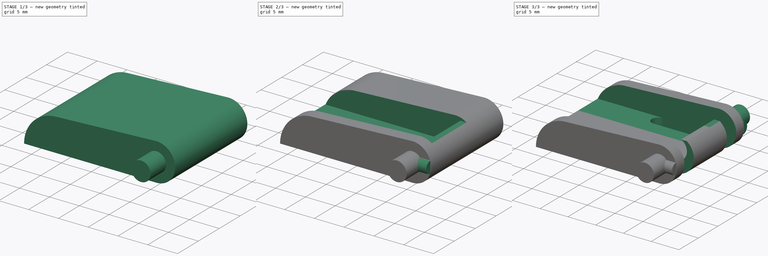
[diagram: build sequence overview — one tinted view per stage of 3, left to right]
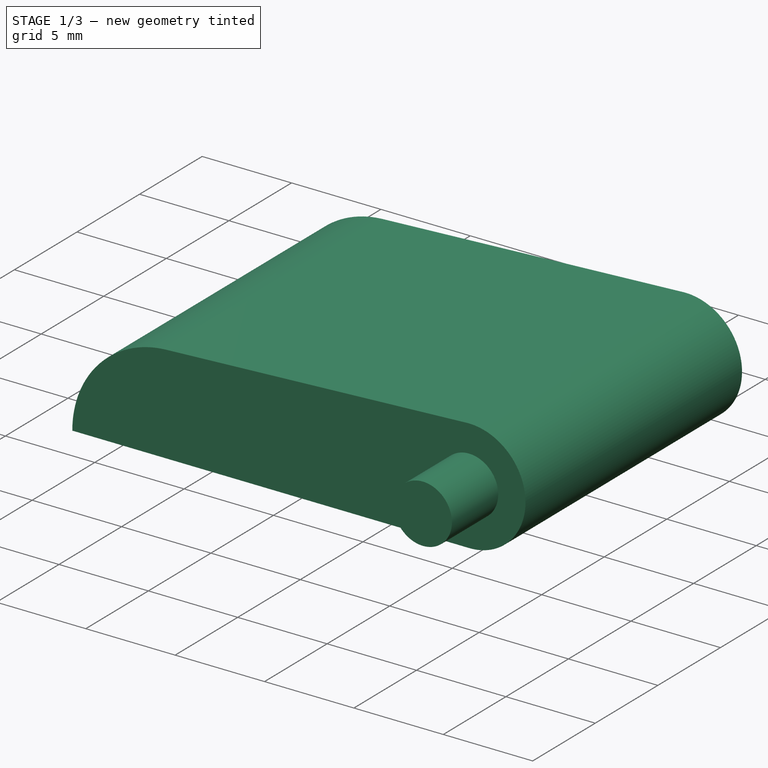
[diagram: stage 1 of 3 — iso view after this stage's code; geometry added in this stage tinted green]
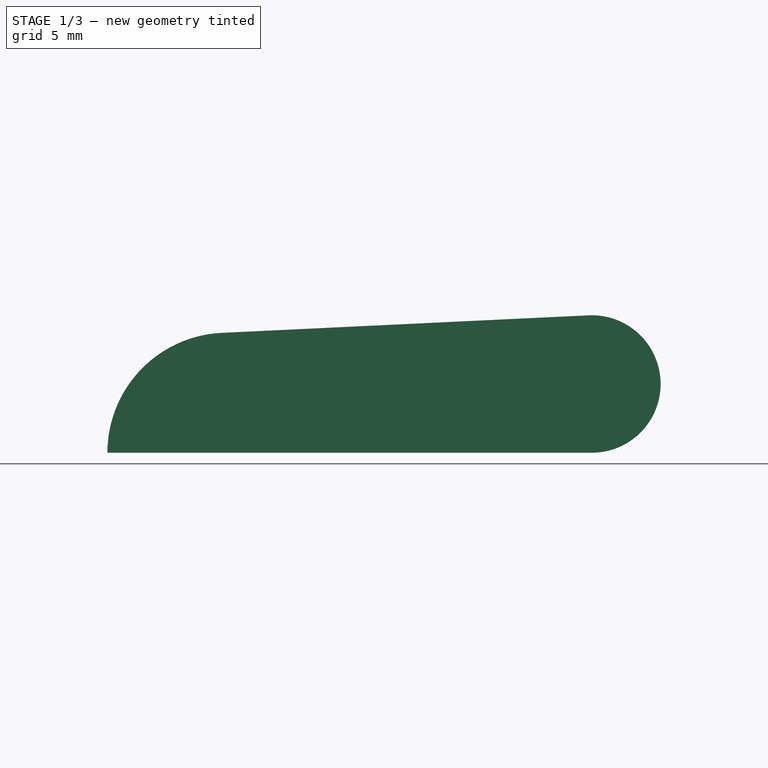
[diagram: stage 1 of 3 — front view after this stage's code; geometry added in this stage tinted green]
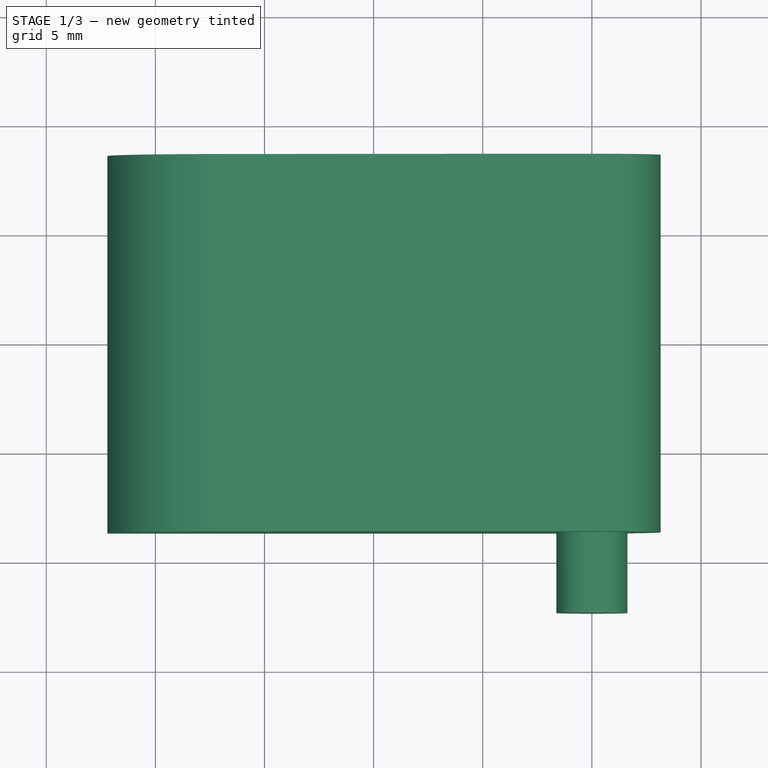
[diagram: stage 1 of 3 — top view after this stage's code; geometry added in this stage tinted green]
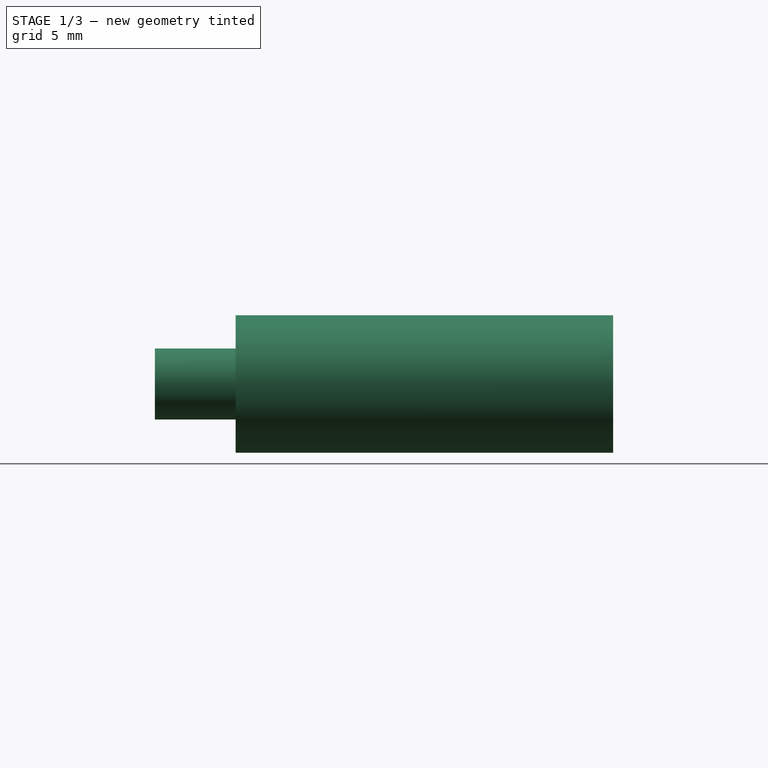
[diagram: stage 1 of 3 — right view after this stage's code; geometry added in this stage tinted green]
FCSTD DOCUMENT  (FreeCAD 0.21R33771 (Git))
Label: pied_clavier
License: All rights reserved
LicenseURL: https://en.wikipedia.org/wiki/All_rights_reserved
objects: Sketcher::SketchObject×5, PartDesign::Pad×3, PartDesign::Pocket×2, PartDesign::Mirrored×1, PartDesign::Body×1
note: 17 computed .brp shape members not serialized (recipe doc carries the construction recipe); baked Part::Feature solids carry a one-line shape summary decoded from their .brp

FEATURE [Sketcher::SketchObject] Sketch
  FullyConstrained = true
  MapMode = 5
  Placement = pos=(0,0,0) rot=(1,0,0;1.5708rad)
  Support = -> [XZ_Plane]
  sketch-geometry (4):
    g0: ArcOfCircle CenterX=0 CenterY=0 CenterZ=0 NormalX=0 NormalY=0 NormalZ=1 AngleXU=0 Radius=3.15 StartAngle=4.71239 EndAngle=7.90169
    g1: LineSegment StartX=-6e-16 StartY=-3.15 StartZ=0 EndX=-22.2 EndY=-3.15 EndZ=0
    g2: ArcOfCircle CenterX=-16.7 CenterY=-3.15 CenterZ=0 NormalX=0 NormalY=0 NormalZ=1 AngleXU=0 Radius=5.5 StartAngle=1.6185 EndAngle=3.14159
    g3: LineSegment StartX=-16.9623 StartY=2.34374 StartZ=0 EndX=-0.150222 EndY=3.14642 EndZ=0
  constraints (11):
    c: Coincident(g0,g-1)
    c: PointOnObject(g0,g-2)
    c: Coincident(g1,g0)
    c: Horizontal(g1)
    c: PointOnObject(g2,g1)
    c: Coincident(g2,g1)
    c: Tangent(g3,g2) = 1.5708
    c: Tangent(g3,g0) = 1.5708
    c: Diameter(g0) = 6.3
    c: Diameter(g2) = 11
    c: DistanceX(g1,g0) = 22.2
FEATURE [PartDesign::Pad] Pad
  Direction = (0,-1,2e-16)
  Length = 17.3
  Length2 = 10
  Midplane = true
  Placement = pos=(0,0,0) rot=(1,0,0;1.5708rad)
  Profile = -> Sketch
  ReferenceAxis = -> Sketch [N_Axis]
  Type = 0
FEATURE [Sketcher::SketchObject] Sketch001
  FullyConstrained = true
  MapMode = 5
  Placement = pos=(0,-8.65,1.9e-15) rot=(1,0,0;1.5708rad)
  Support = -> [Pad]
  sketch-geometry (1):
    g0: Circle CenterX=0 CenterY=0 CenterZ=0 NormalX=0 NormalY=0 NormalZ=1 AngleXU=0 Radius=1.625
  constraints (2):
    c: Coincident(g0,g-1)
    c: Diameter(g0) = 3.25
FEATURE [PartDesign::Pad] Pad001
  BaseFeature = -> Pad
  Direction = (0,-1,2e-16)
  Length = 3.7
  Length2 = 10
  Placement = pos=(0,0,0) rot=(1,0,0;1.5708rad)
  Profile = -> Sketch001
  ReferenceAxis = -> Sketch001 [N_Axis]
  Type = 0
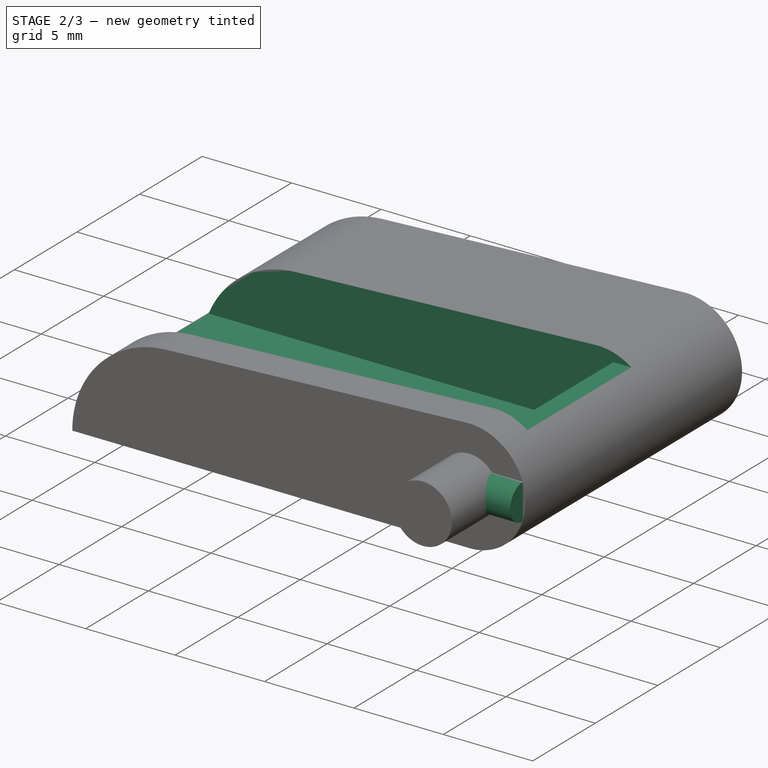
[diagram: stage 2 of 3 — iso view after this stage's code; geometry added in this stage tinted green]
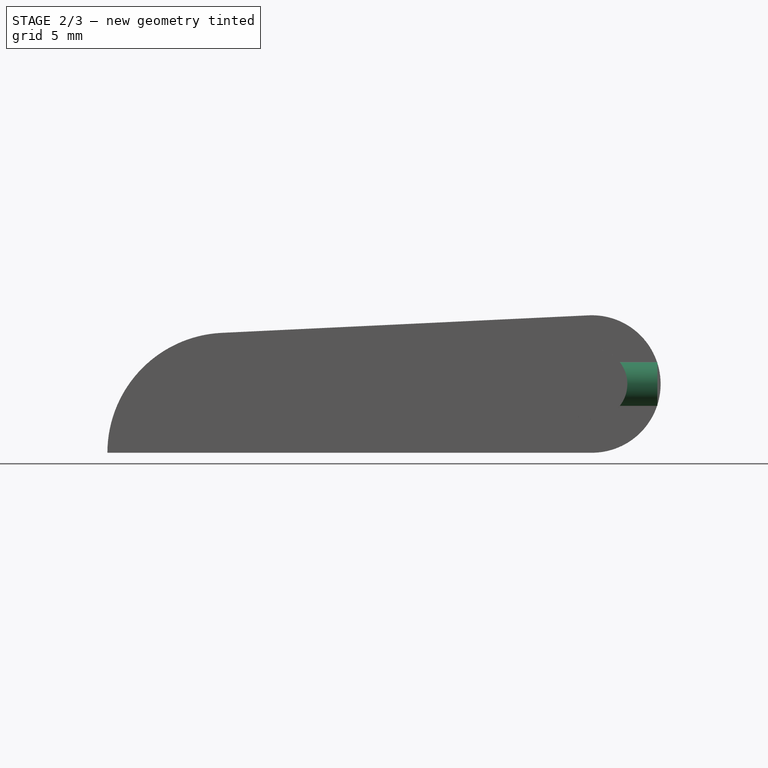
[diagram: stage 2 of 3 — front view after this stage's code; geometry added in this stage tinted green]
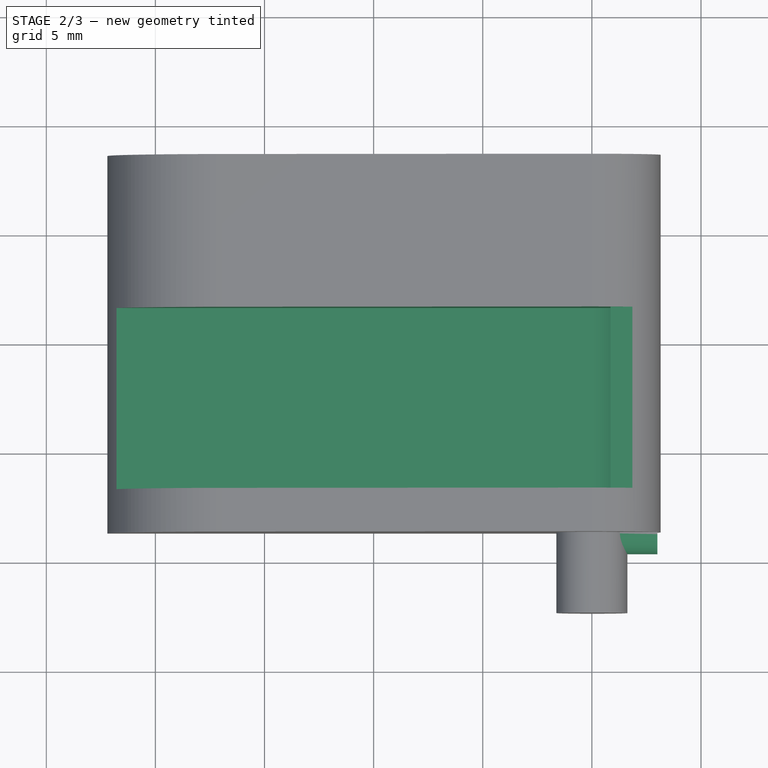
[diagram: stage 2 of 3 — top view after this stage's code; geometry added in this stage tinted green]
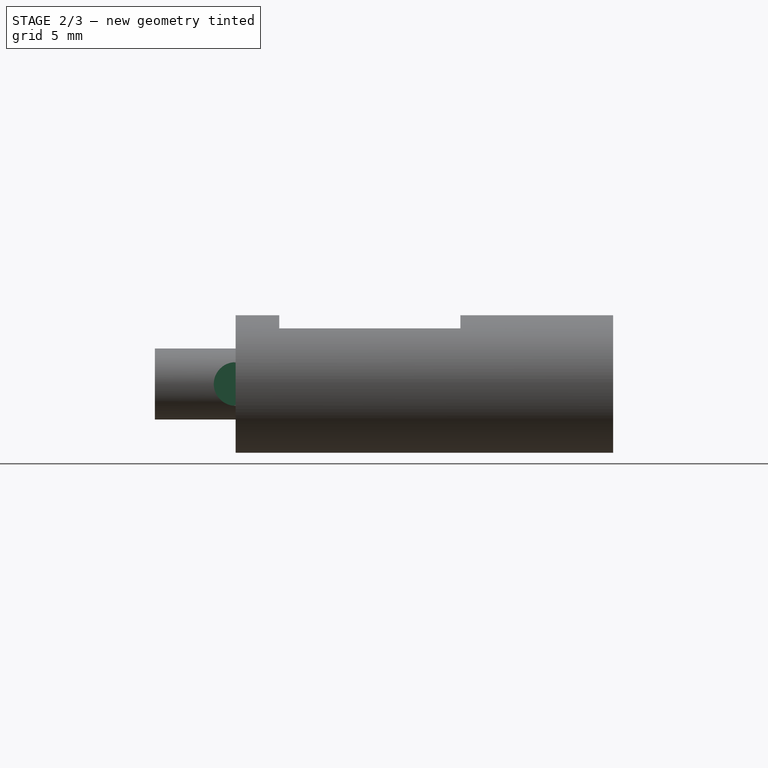
[diagram: stage 2 of 3 — right view after this stage's code; geometry added in this stage tinted green]
FEATURE [Sketcher::SketchObject] Sketch002
  ExternalGeometry = -> [Pad001]
  FullyConstrained = true
  MapMode = 5
  Placement = pos=(0,0,0) rot=(0.57735,0.57735,0.57735;2.0944rad)
  Support = -> [YZ_Plane]
  sketch-geometry (2):
    g0: ArcOfCircle CenterX=-8.65 CenterY=-9e-16 CenterZ=0 NormalX=0 NormalY=0 NormalZ=1 AngleXU=0 Radius=1 StartAngle=1.5708 EndAngle=4.71239
    g1: LineSegment StartX=-8.65 StartY=-1 StartZ=0 EndX=-8.65 EndY=1 EndZ=0
  constraints (6):
    c: Coincident(g0,g-3)
    c: Vertical(g0,g0)
    c: Vertical(g0,g0)
    c: Diameter(g0) = 2
    c: Coincident(g1,g0)
    c: Coincident(g1,g0)
FEATURE [PartDesign::Pad] Pad002
  BaseFeature = -> Pad001
  Direction = (1,-2e-16,3e-16)
  Length = 3
  Length2 = 10
  Placement = pos=(0,0,0) rot=(1,0,0;1.5708rad)
  Profile = -> Sketch002
  ReferenceAxis = -> Sketch002 [N_Axis]
  Type = 0
FEATURE [Sketcher::SketchObject] Sketch003
  ExternalGeometry = -> [Pad002]
  FullyConstrained = true
  MapMode = 5
  Placement = pos=(0,-8.65,1.9e-15) rot=(1,0,0;1.5708rad)
  Support = -> [Pad002]
  sketch-geometry (6):
    g0: LineSegment StartX=-21.7833 StartY=-1.05 StartZ=0 EndX=0 EndY=-1.05 EndZ=0
    g1: ArcOfCircle CenterX=0 CenterY=0.849664 CenterZ=0 NormalX=0 NormalY=0 NormalZ=1 AngleXU=0 Radius=1.89966 StartAngle=4.71239 EndAngle=7.38757
    g2: LineSegment StartX=1.85426 StartY=2.54642 StartZ=0 EndX=0.854256 EndY=2.54642 EndZ=0
    g3: LineSegment StartX=-16.9623 StartY=2.34374 StartZ=0 EndX=-0.150222 EndY=3.14642 EndZ=0
    g4: ArcOfCircle CenterX=0 CenterY=0 CenterZ=0 NormalX=0 NormalY=0 NormalZ=1 AngleXU=0 Radius=3.15 StartAngle=0.941405 EndAngle=1.6185
    g5: ArcOfCircle CenterX=-16.7 CenterY=-3.15 CenterZ=0 NormalX=0 NormalY=0 NormalZ=1 AngleXU=0 Radius=5.5 StartAngle=1.6185 EndAngle=2.74983
  constraints (17):
    c: PointOnObject(g0,g-2)
    c: Horizontal(g0)
    c: DistanceY(g-6,g0) = 2.1
    c: PointOnObject(g1,g-2)
    c: Coincident(g1,g0)
    c: Coincident(g2,g1)
    c: Horizontal(g2)
    c: DistanceY(g1,g-7) = 0.6
    c: Distance(g2) = 1
    c: Coincident(g3,g-6)
    c: Coincident(g3,g-7)
    c: Coincident(g4,g-7)
    c: Coincident(g4,g3)
    c: Coincident(g4,g2)
    c: Coincident(g5,g-6)
    c: Coincident(g5,g3)
    c: Coincident(g5,g0)
FEATURE [PartDesign::Pocket] Pocket
  BaseFeature = -> Pad002
  Direction = (0,1,-2e-16)
  Length = 10.3
  Length2 = -2
  Placement = pos=(0,0,0) rot=(1,0,0;1.5708rad)
  Profile = -> Sketch003
  ReferenceAxis = -> Sketch003 [N_Axis]
  Type = 4
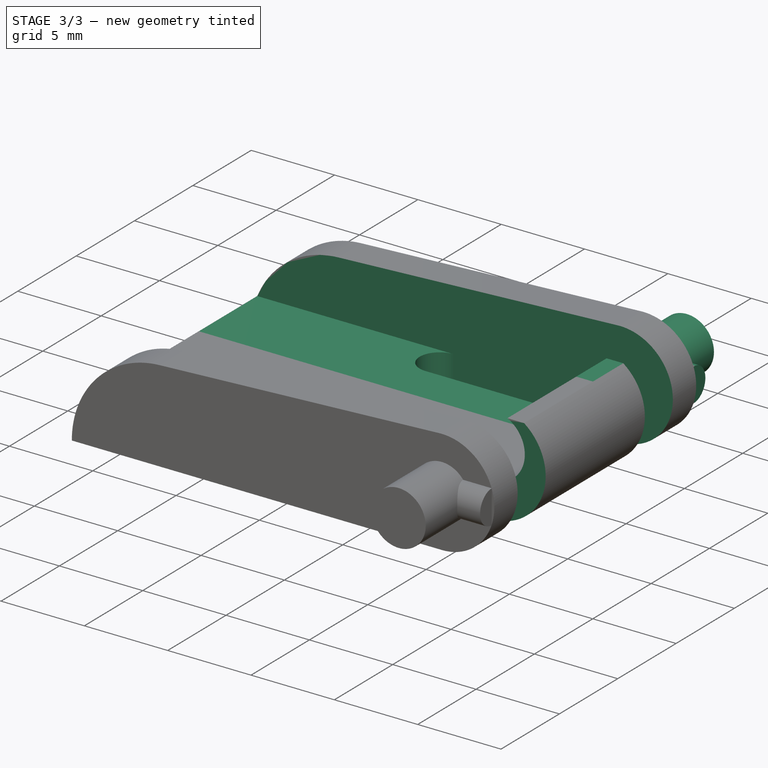
[diagram: stage 3 of 3 — iso view after this stage's code; geometry added in this stage tinted green]
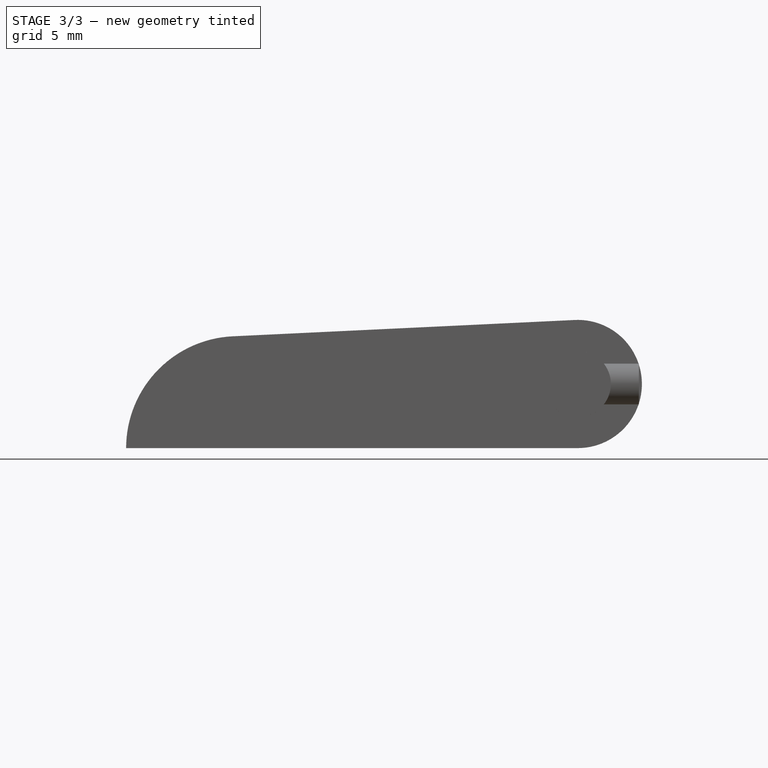
[diagram: stage 3 of 3 — front view after this stage's code; geometry added in this stage tinted green]
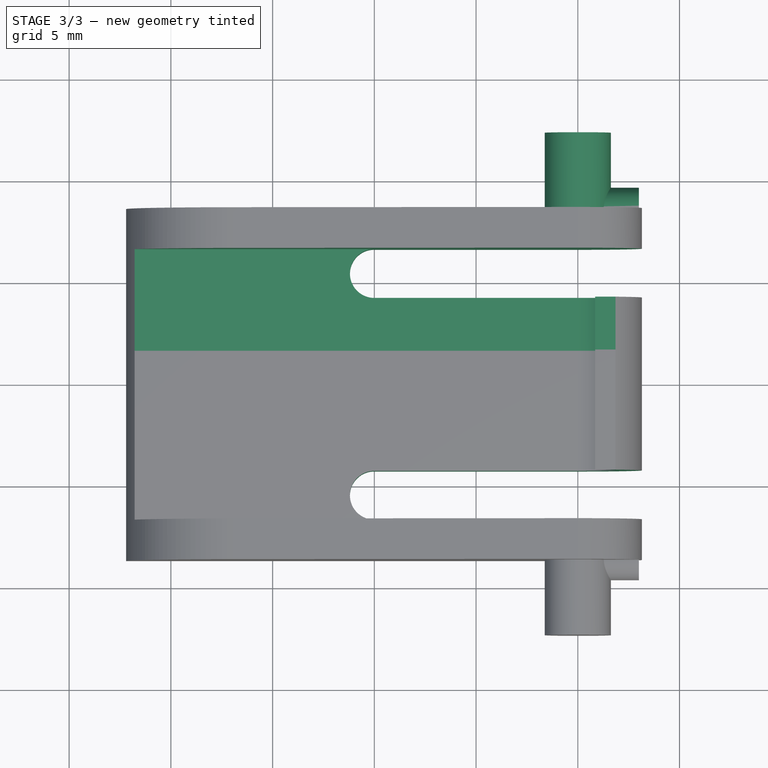
[diagram: stage 3 of 3 — top view after this stage's code; geometry added in this stage tinted green]
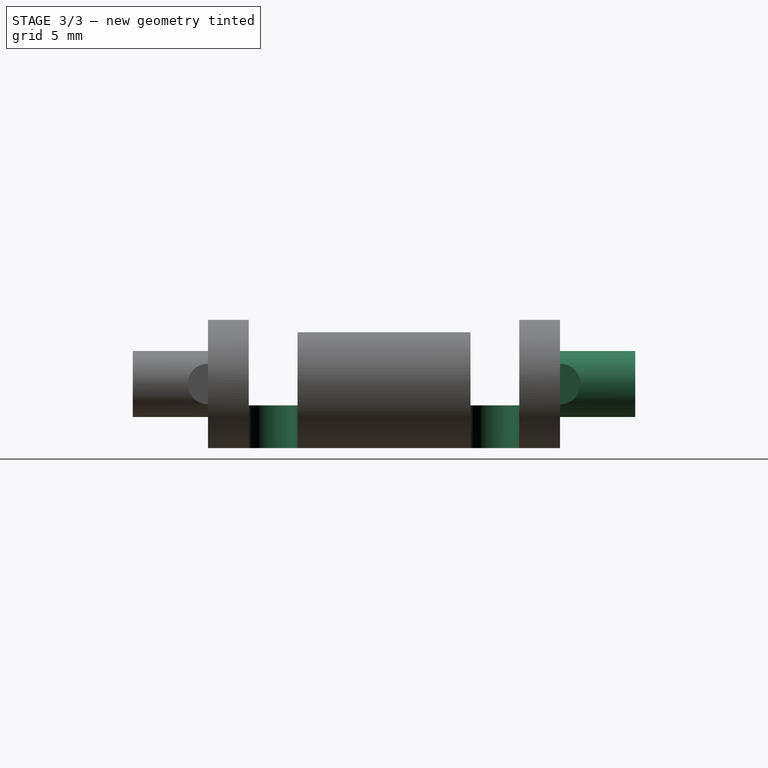
[diagram: stage 3 of 3 — right view after this stage's code; geometry added in this stage tinted green]
FEATURE [Sketcher::SketchObject] Sketch004
  ExternalGeometry = -> [Pocket]
  FullyConstrained = true
  MapMode = 5
  Placement = pos=(0,-7e-16,-3.15) rot=(1,0,0;3.14159rad)
  Support = -> [Pocket]
  sketch-geometry (4):
    g0: ArcOfCircle CenterX=-10 CenterY=5.45 CenterZ=0 NormalX=0 NormalY=0 NormalZ=1 AngleXU=0 Radius=1.2 StartAngle=1.5708 EndAngle=4.71239
    g1: LineSegment StartX=-10 StartY=4.25 StartZ=0 EndX=5 EndY=4.25 EndZ=0
    g2: LineSegment StartX=5 StartY=4.25 StartZ=0 EndX=5 EndY=6.65 EndZ=0
    g3: LineSegment StartX=5 StartY=6.65 StartZ=0 EndX=-10 EndY=6.65 EndZ=0
  constraints (13):
    c: Coincident(g1,g2)
    c: Coincident(g2,g3)
    c: Horizontal(g1)
    c: Horizontal(g3)
    c: Vertical(g2)
    c: Coincident(g1,g0)
    c: Coincident(g0,g3)
    c: Vertical(g0,g0)
    c: Vertical(g0,g0)
    c: Distance(g2) = 2.4
    c: DistanceX(g0,g-1) = 10
    c: DistanceX(g-1,g1) = 5
    c: DistanceY(g0,g-3) = 2
FEATURE [PartDesign::Pocket] Pocket001
  BaseFeature = -> Pocket
  Direction = (0,2e-16,1)
  Length = 5
  Length2 = 5
  Placement = pos=(0,0,0) rot=(1,0,0;1.5708rad)
  Profile = -> Sketch004
  ReferenceAxis = -> Sketch004 [N_Axis]
  Type = 1
FEATURE [PartDesign::Mirrored] Mirrored
  BaseFeature = -> Pocket001
  MirrorPlane = -> XZ_Plane
  Originals = -> [Pocket001,Pocket,Pad002,Pad001]
  Placement = pos=(0,0,0) rot=(1,0,0;1.5708rad)
FEATURE [PartDesign::Body] Body
  Group = -> [Sketch,Pad,Sketch001,Pad001,Sketch002,Pad002,Sketch003,Pocket,Sketch004,Pocket001,Mirrored]
  Origin = -> Origin
  Tip = -> Mirrored
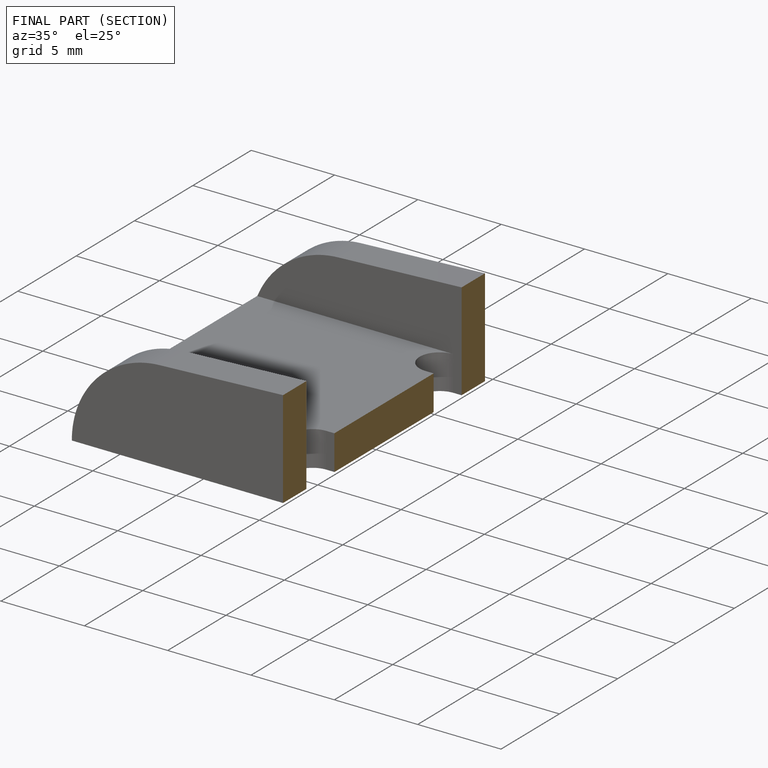
[diagram: finished part — half-section view (interior)]
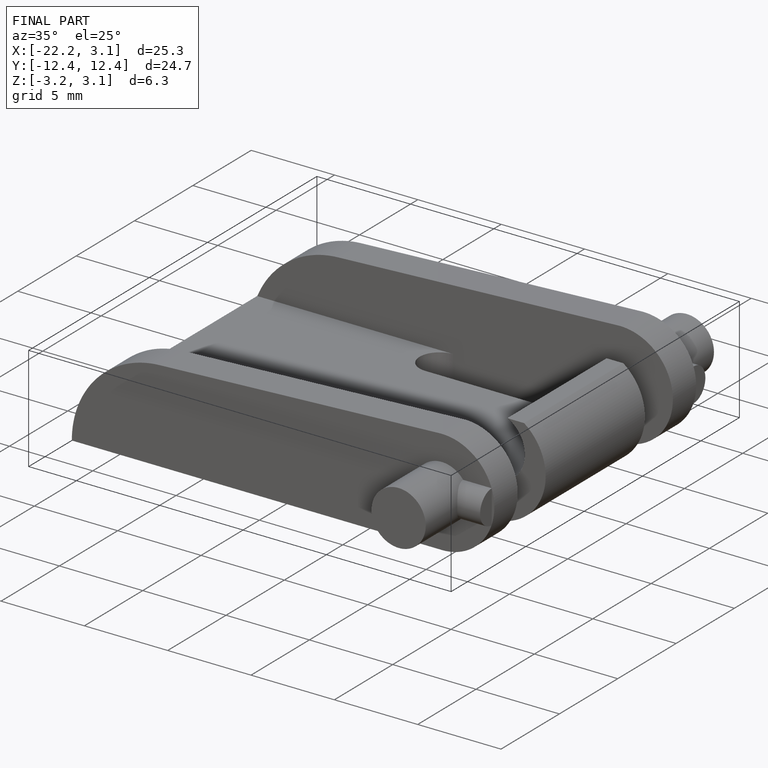
[diagram: finished part — iso view with bounding-box wireframe]
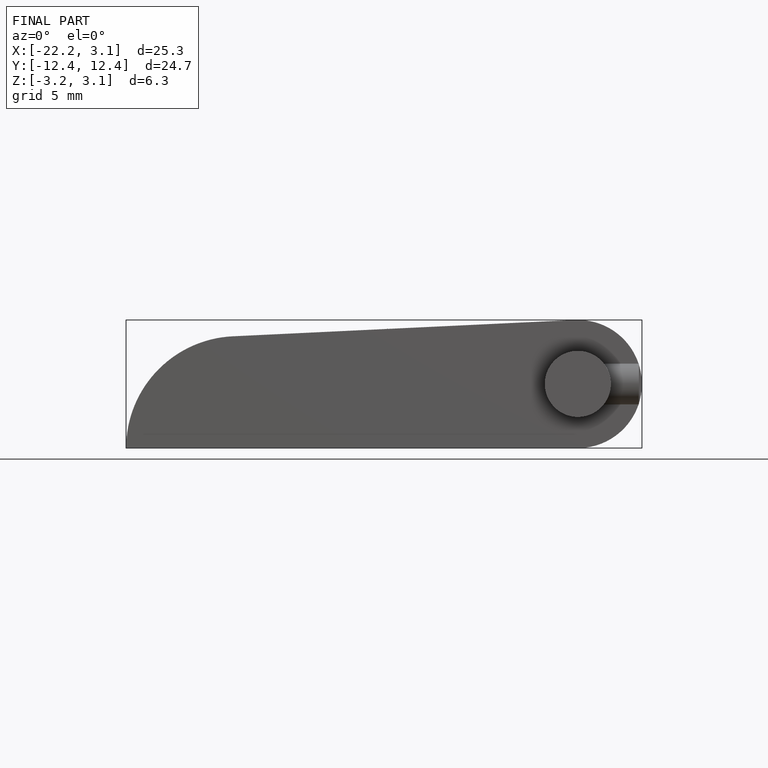
[diagram: finished part — front view with bounding-box wireframe]
